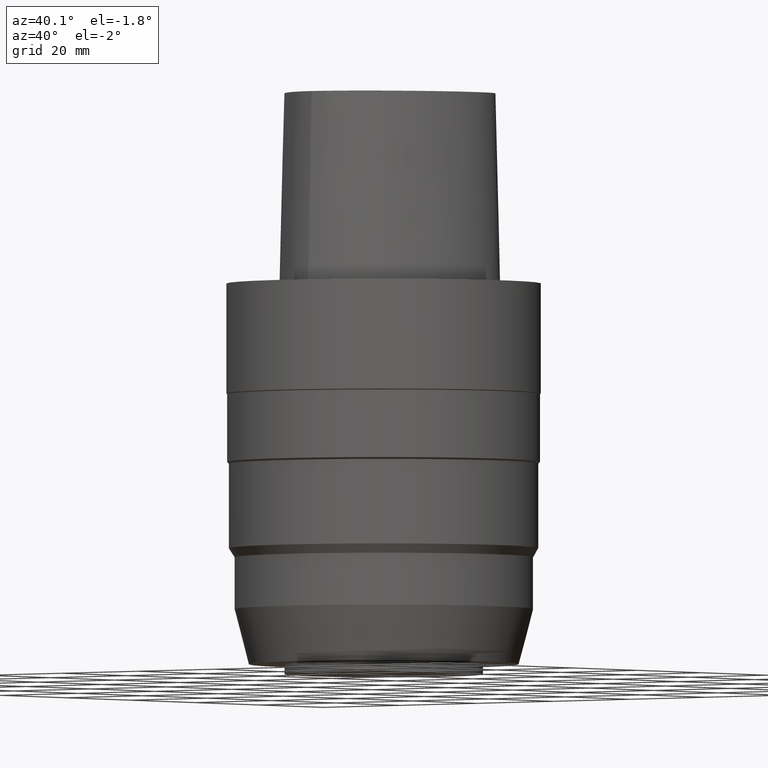
[diagram: clean part render]
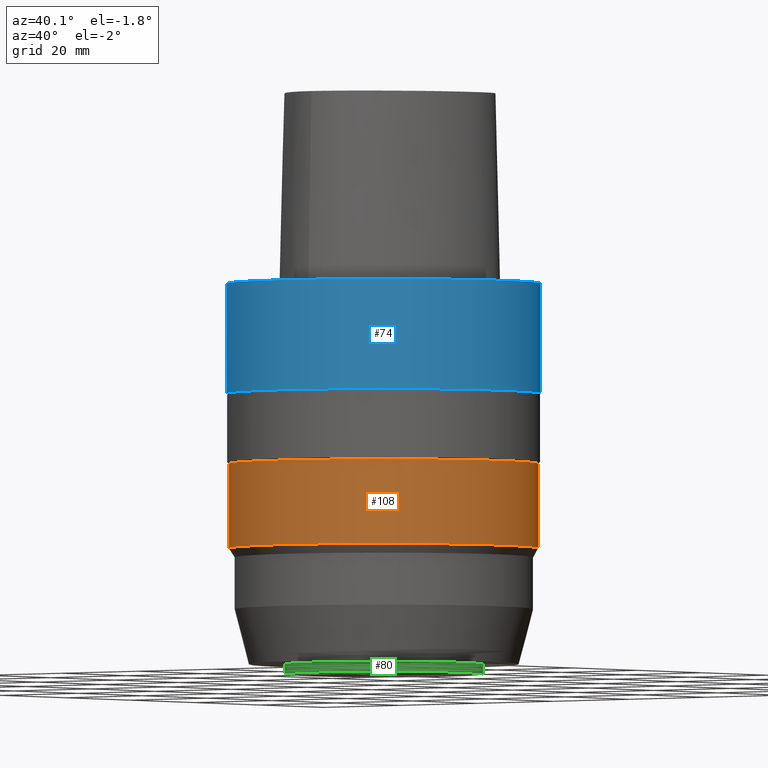
[diagram: same view with three faces highlighted in distinct colors, each labeled with its STEP entity id]
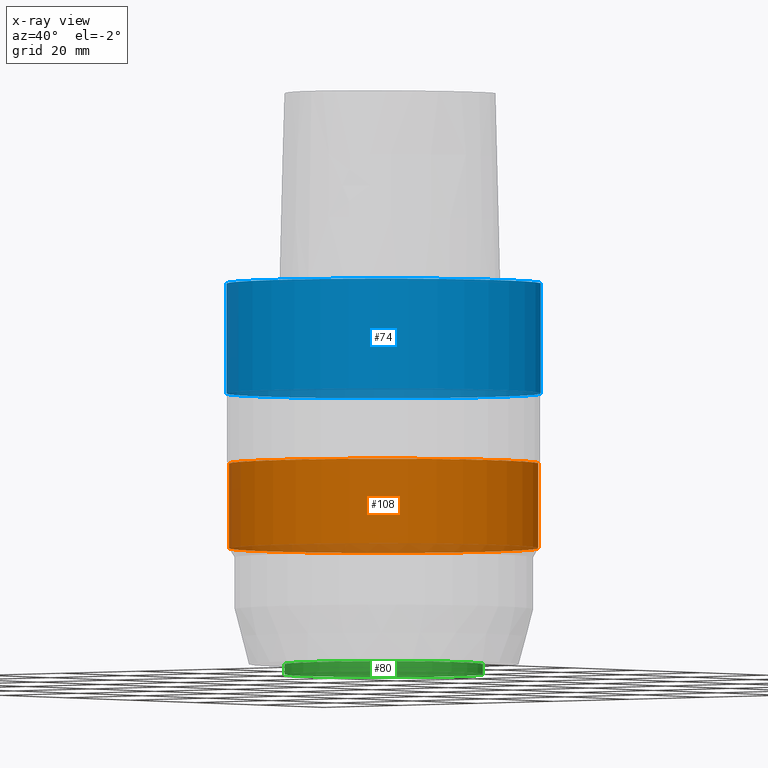
[diagram: x-ray of the same camera — body ghosted, the three highlighted faces saturated]
A machine part, auxiliary view with three faces highlighted in distinct colors.
The next image is the same camera in x-ray (body ghosted, the three faces saturated) — at least one of them is partly hidden behind the body in this view.
Their STEP definitions:

[orange] entity #108 — the highlighted cylindrical surface (bore or boss wall) has radius 31 mm, axis along (0, 0, -1).
#86=EDGE_CURVE('Unnamed[1]',#207,#207,#208,.T.);
#108=ADVANCED_FACE('Unnamed[1]',(#238,#239),#240,.T.);
#118=EDGE_CURVE('Unnamed[1]',#255,#255,#256,.T.);
#207=VERTEX_POINT('',#429);
#208=CIRCLE('',#430,31.0000000000001);
#238=FACE_BOUND('',#566,.T.);
#239=FACE_BOUND('',#567,.T.);
#240=CYLINDRICAL_SURFACE('',#568,31.0);
#255=VERTEX_POINT('',#587);
#256=CIRCLE('',#588,31.0);
#429=CARTESIAN_POINT('',(2.20742585546273E-015,31.0000000000001,-36.0499999999938));
#430=AXIS2_PLACEMENT_3D('',#717,#718,#719);
#566=EDGE_LOOP('',(#744));
#567=EDGE_LOOP('',(#745));
#568=AXIS2_PLACEMENT_3D('',#746,#747,#748);
#587=CARTESIAN_POINT('',(3.24417182959735E-015,31.0,-52.981346652048));
#588=AXIS2_PLACEMENT_3D('',#764,#765,#766);
#717=CARTESIAN_POINT('',(2.20742585546273E-015,4.41485171092545E-015,-36.0499999999938));
#718=DIRECTION('',(6.12323399573677E-017,1.22464679914735E-016,-1.0));
#719=DIRECTION('',(-1.23259516440783E-032,1.0,1.22464679914735E-016));
#744=ORIENTED_EDGE('',*,*,#118,.F.);
#745=ORIENTED_EDGE('',*,*,#86,.T.);
#746=CARTESIAN_POINT('',(2.72579884253004E-015,5.45159768506007E-015,-44.5156733260209));
#747=DIRECTION('',(6.12323399573677E-017,1.22464679914735E-016,-1.0));
#748=DIRECTION('',(-1.23259516440783E-032,1.0,1.22464679914735E-016));
#764=CARTESIAN_POINT('',(3.24417182959735E-015,6.48834365919469E-015,-52.981346652048));
#765=DIRECTION('',(6.12323399573676E-017,1.22464679914735E-016,-1.0));
#766=DIRECTION('',(-1.23259516440783E-032,1.0,1.22464679914735E-016));

[blue] entity #74 — the highlighted cylindrical surface (bore or boss wall) has radius 31.5 mm, axis along (0, 0, -1).
#60=EDGE_CURVE('Unnamed[1]',#165,#165,#166,.T.);
#74=ADVANCED_FACE('Unnamed[1]',(#187,#188),#189,.T.);
#84=EDGE_CURVE('Unnamed[1]',#204,#204,#205,.T.);
#165=VERTEX_POINT('',#304);
#166=CIRCLE('',#305,31.5);
#187=FACE_BOUND('',#403,.T.);
#188=FACE_BOUND('',#404,.T.);
#189=CYLINDRICAL_SURFACE('',#405,31.5);
#204=VERTEX_POINT('',#425);
#205=CIRCLE('',#426,31.5);
#304=CARTESIAN_POINT('',(-3.88267476788467E-031,31.5,3.85763741731416E-015));
#305=AXIS2_PLACEMENT_3D('',#674,#675,#676);
#403=EDGE_LOOP('',(#696));
#404=EDGE_LOOP('',(#697));
#405=AXIS2_PLACEMENT_3D('',#698,#699,#700);
#425=CARTESIAN_POINT('',(1.3471114790621E-015,31.5,-22.0000000000002));
#426=AXIS2_PLACEMENT_3D('',#714,#715,#716);
#674=CARTESIAN_POINT('',(0.0,0.0,0.0));
#675=DIRECTION('',(6.12323399573677E-017,1.22464679914735E-016,-1.0));
#676=DIRECTION('',(-1.23259516440783E-032,1.0,1.22464679914735E-016));
#696=ORIENTED_EDGE('',*,*,#84,.F.);
#697=ORIENTED_EDGE('',*,*,#60,.T.);
#698=CARTESIAN_POINT('',(6.73555739531052E-016,1.3471114790621E-015,-11.0000000000001));
#699=DIRECTION('',(6.12323399573677E-017,1.22464679914735E-016,-1.0));
#700=DIRECTION('',(-1.23259516440783E-032,1.0,1.22464679914735E-016));
#714=CARTESIAN_POINT('',(1.3471114790621E-015,2.69422295812421E-015,-22.0000000000002));
#715=DIRECTION('',(6.12323399573677E-017,1.22464679914735E-016,-1.0));
#716=DIRECTION('',(-1.23259516440783E-032,1.0,1.22464679914735E-016));

[green] entity #80 — the highlighted cylindrical surface (bore or boss wall) has radius 19.92 mm, axis along (0, 0, -1).
#80=ADVANCED_FACE('Unnamed[1]',(#197,#198),#199,.T.);
#110=EDGE_CURVE('Unnamed[1]',#242,#242,#243,.T.);
#137=EDGE_CURVE('Unnamed[1]',#281,#281,#282,.T.);
#197=FACE_BOUND('',#415,.T.);
#198=FACE_BOUND('',#416,.T.);
#199=CYLINDRICAL_SURFACE('',#417,19.9200000000011);
#242=VERTEX_POINT('',#571);
#243=CIRCLE('',#572,19.9200000000013);
#281=VERTEX_POINT('',#653);
#282=CIRCLE('',#654,19.9200000000008);
#415=EDGE_LOOP('',(#708));
#416=EDGE_LOOP('',(#709));
#417=AXIS2_PLACEMENT_3D('',#710,#711,#712);
#571=CARTESIAN_POINT('',(4.66590430475139E-015,19.9200000000014,-76.1999999999996));
#572=AXIS2_PLACEMENT_3D('',#749,#750,#751);
#653=CARTESIAN_POINT('',(4.78836898466617E-015,19.9200000000008,-78.2000000000003));
#654=AXIS2_PLACEMENT_3D('',#790,#791,#792);
#708=ORIENTED_EDGE('',*,*,#137,.F.);
#709=ORIENTED_EDGE('',*,*,#110,.T.);
#710=CARTESIAN_POINT('',(4.72713664470878E-015,9.45427328941755E-015,-77.1999999999999));
#711=DIRECTION('',(6.12323399573677E-017,1.22464679914735E-016,-1.0));
#712=DIRECTION('',(-1.23259516440783E-032,1.0,1.22464679914735E-016));
#749=CARTESIAN_POINT('',(4.66590430475139E-015,9.33180860950278E-015,-76.1999999999996));
#750=DIRECTION('',(6.12323399573677E-017,1.22464679914735E-016,-1.0));
#751=DIRECTION('',(-1.23259516440783E-032,1.0,1.22464679914735E-016));
#790=CARTESIAN_POINT('',(4.78836898466617E-015,9.57673796933233E-015,-78.2000000000003));
#791=DIRECTION('',(6.12323399573677E-017,1.22464679914735E-016,-1.0));
#792=DIRECTION('',(-1.23259516440783E-032,1.0,1.22464679914735E-016));